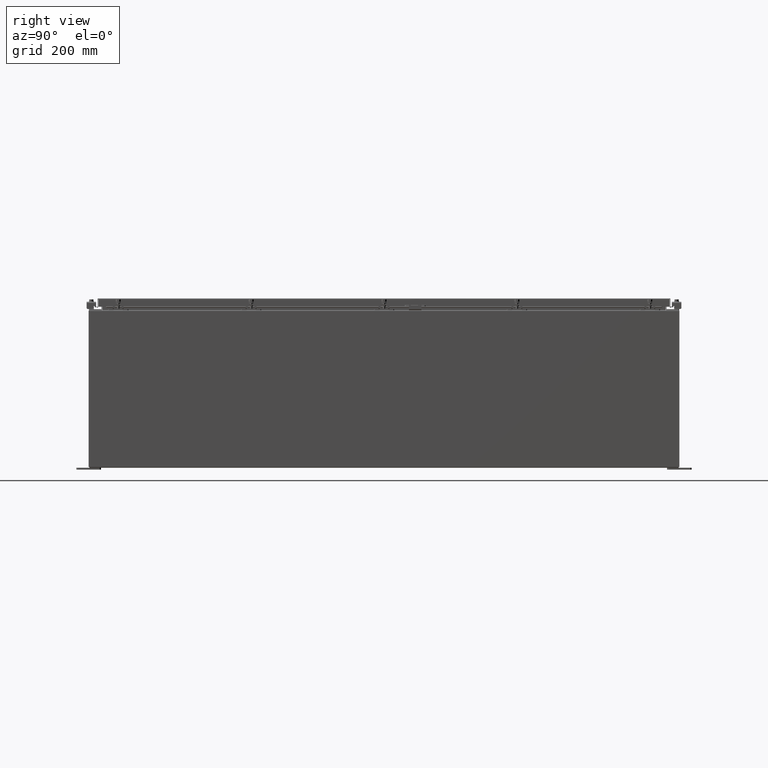
[diagram: clean part render]
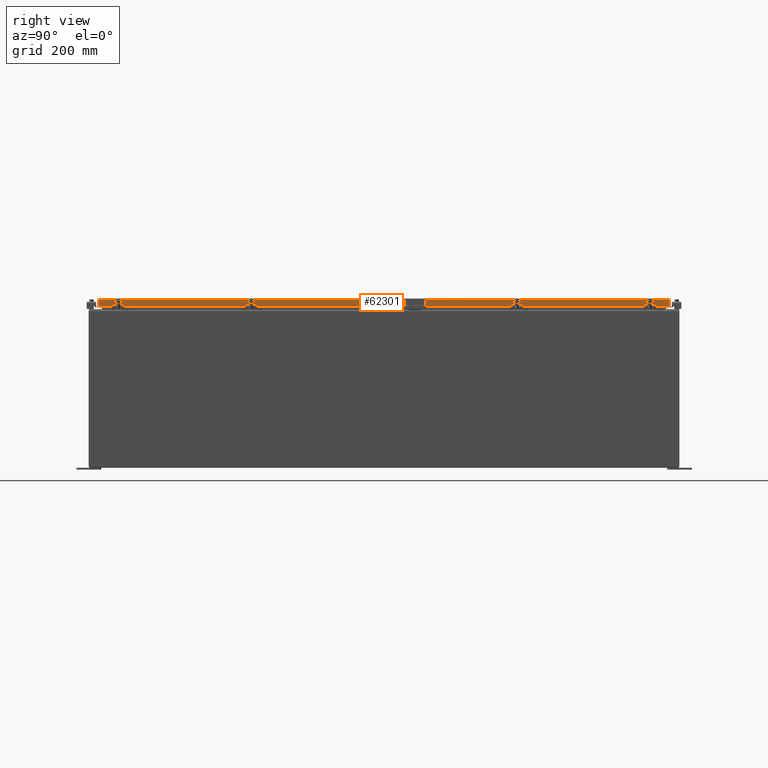
[diagram: same view with one face highlighted and labeled with its STEP entity id]
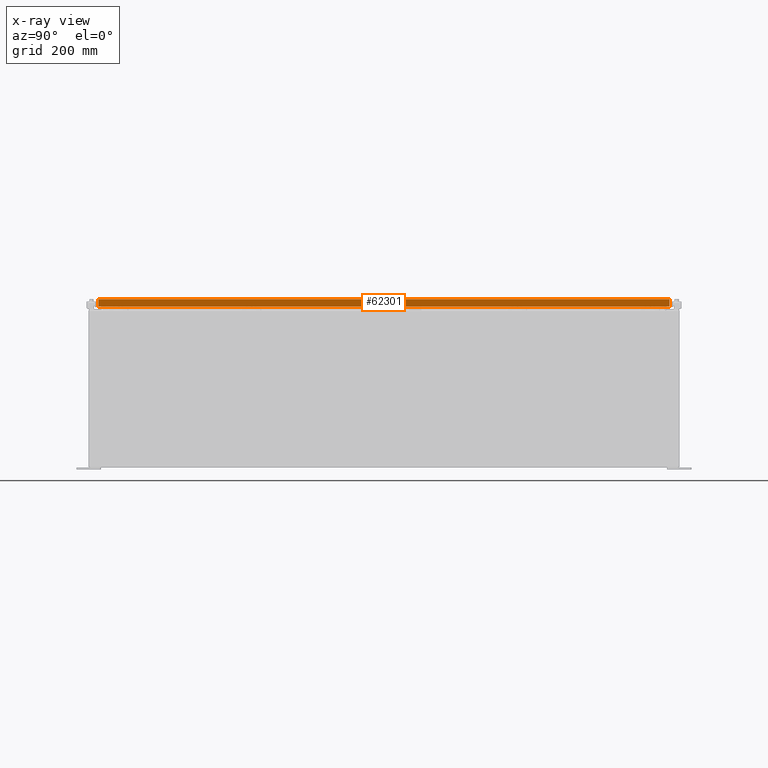
[diagram: x-ray of the same camera — body ghosted, the highlighted face saturated]
A machine part, right view. The second image highlights one B-rep face of the part: STEP entity #62301.
The next image is the same camera in x-ray: the body ghosted, the highlighted face saturated — about 0% of this face is hidden behind the body in this view.
In plain terms, the highlighted planar face has unit normal (1, 0, 0).
Its self-contained STEP definition (entity closure, byte-faithful):
#1015 = CARTESIAN_POINT ( 'NONE',  ( 17.07800000000000300, -29.00515786437626500, -0.08770000000000007000 ) ) ;
#4899 = CARTESIAN_POINT ( 'NONE',  ( 17.07799999999999600, -28.25515786437625800, -0.8500000000000016400 ) ) ;
#6016 = AXIS2_PLACEMENT_3D ( 'NONE', #48218, #18992, #53072 ) ;
#6889 = DIRECTION ( 'NONE',  ( 0.0000000000000000000, -1.000000000000000000, 0.0000000000000000000 ) ) ;
#8953 = EDGE_LOOP ( 'NONE', ( #61073, #12831, #53755, #46216, #23295, #43961 ) ) ;
#9087 = VECTOR ( 'NONE', #6889, 39.37007874015748100 ) ;
#10927 = CARTESIAN_POINT ( 'NONE',  ( 17.07800000000000700, 29.00515786437627200, -0.8499999999999996400 ) ) ;
#11232 = VERTEX_POINT ( 'NONE', #4899 ) ;
#12831 = ORIENTED_EDGE ( 'NONE', *, *, #35577, .F. ) ;
#12972 = EDGE_CURVE ( 'NONE', #16880, #31287, #48824, .T. ) ;
#14812 = LINE ( 'NONE', #39190, #27790 ) ;
#16880 = VERTEX_POINT ( 'NONE', #46198 ) ;
#17669 = DIRECTION ( 'NONE',  ( 0.0000000000000000000, -1.000000000000000000, 0.0000000000000000000 ) ) ;
#18739 = LINE ( 'NONE', #58876, #46251 ) ;
#18992 = DIRECTION ( 'NONE',  ( 1.000000000000000000, 0.0000000000000000000, 2.818880942772360100E-015 ) ) ;
#23295 = ORIENTED_EDGE ( 'NONE', *, *, #48903, .T. ) ;
#24663 = CARTESIAN_POINT ( 'NONE',  ( 17.07800000000000300, -29.00515786437626500, -0.07469999999999978000 ) ) ;
#25042 = LINE ( 'NONE', #60308, #9087 ) ;
#26063 = VERTEX_POINT ( 'NONE', #32218 ) ;
#27790 = VECTOR ( 'NONE', #58763, 39.37007874015748100 ) ;
#29491 = LINE ( 'NONE', #46909, #53863 ) ;
#29709 = DIRECTION ( 'NONE',  ( 0.0000000000000000000, -1.000000000000000000, 0.0000000000000000000 ) ) ;
#31287 = VERTEX_POINT ( 'NONE', #1015 ) ;
#32218 = CARTESIAN_POINT ( 'NONE',  ( 17.07800000000000300, 29.00515786437626500, -0.08770000000000007000 ) ) ;
#34635 = LINE ( 'NONE', #40226, #55949 ) ;
#35577 = EDGE_CURVE ( 'NONE', #11232, #16880, #25042, .T. ) ;
#37017 = VERTEX_POINT ( 'NONE', #10927 ) ;
#38074 = VERTEX_POINT ( 'NONE', #54436 ) ;
#39190 = CARTESIAN_POINT ( 'NONE',  ( 17.07799999999999600, 28.25515786437627600, -0.8500000000000016400 ) ) ;
#39375 = DIRECTION ( 'NONE',  ( -2.818880942772360100E-015, -6.982962677686265900E-015, 1.000000000000000000 ) ) ;
#40226 = CARTESIAN_POINT ( 'NONE',  ( 17.07800000000000300, 29.00515786437626500, 2.509435972240157400E-013 ) ) ;
#41774 = EDGE_CURVE ( 'NONE', #26063, #31287, #18739, .T. ) ;
#43961 = ORIENTED_EDGE ( 'NONE', *, *, #41774, .T. ) ;
#45138 = DIRECTION ( 'NONE',  ( -2.818880942772360100E-015, -6.982962677686265900E-015, 1.000000000000000000 ) ) ;
#46198 = CARTESIAN_POINT ( 'NONE',  ( 17.07800000000000700, -29.00515786437626200, -0.8499999999999996400 ) ) ;
#46216 = ORIENTED_EDGE ( 'NONE', *, *, #55158, .F. ) ;
#46251 = VECTOR ( 'NONE', #29709, 39.37007874015748100 ) ;
#46909 = CARTESIAN_POINT ( 'NONE',  ( 17.07800000000000700, -29.09400000000000100, -0.8499999999999996400 ) ) ;
#48218 = CARTESIAN_POINT ( 'NONE',  ( 17.07800000000000300, 0.0000000000000000000, 4.840166239667796000E-014 ) ) ;
#48735 = EDGE_CURVE ( 'NONE', #38074, #11232, #14812, .T. ) ;
#48824 = LINE ( 'NONE', #24663, #60243 ) ;
#48903 = EDGE_CURVE ( 'NONE', #37017, #26063, #34635, .T. ) ;
#53072 = DIRECTION ( 'NONE',  ( 2.818880942772360100E-015, 0.0000000000000000000, -1.000000000000000000 ) ) ;
#53755 = ORIENTED_EDGE ( 'NONE', *, *, #48735, .F. ) ;
#53863 = VECTOR ( 'NONE', #17669, 39.37007874015748100 ) ;
#54436 = CARTESIAN_POINT ( 'NONE',  ( 17.07799999999999600, 28.25515786437626200, -0.8500000000000016400 ) ) ;
#55158 = EDGE_CURVE ( 'NONE', #37017, #38074, #29491, .T. ) ;
#55949 = VECTOR ( 'NONE', #45138, 39.37007874015748100 ) ;
#58763 = DIRECTION ( 'NONE',  ( 0.0000000000000000000, -1.000000000000000000, 0.0000000000000000000 ) ) ;
#58876 = CARTESIAN_POINT ( 'NONE',  ( 17.07800000000000300, 0.0000000000000000000, -0.08770000000000007000 ) ) ;
#60243 = VECTOR ( 'NONE', #39375, 39.37007874015748100 ) ;
#60308 = CARTESIAN_POINT ( 'NONE',  ( 17.07800000000000700, -29.09400000000000100, -0.8499999999999996400 ) ) ;
#61073 = ORIENTED_EDGE ( 'NONE', *, *, #12972, .F. ) ;
#61727 = FACE_OUTER_BOUND ( 'NONE', #8953, .T. ) ;
#62301 = ADVANCED_FACE ( 'NONE', ( #61727 ), #62673, .T. ) ;
#62673 = PLANE ( 'NONE',  #6016 ) ;